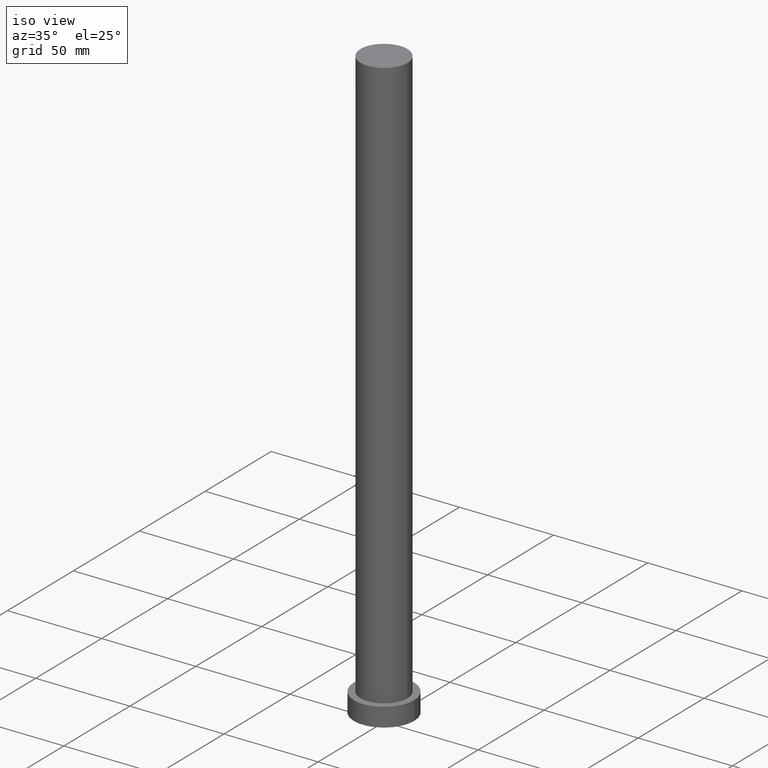
[diagram: clean part render]
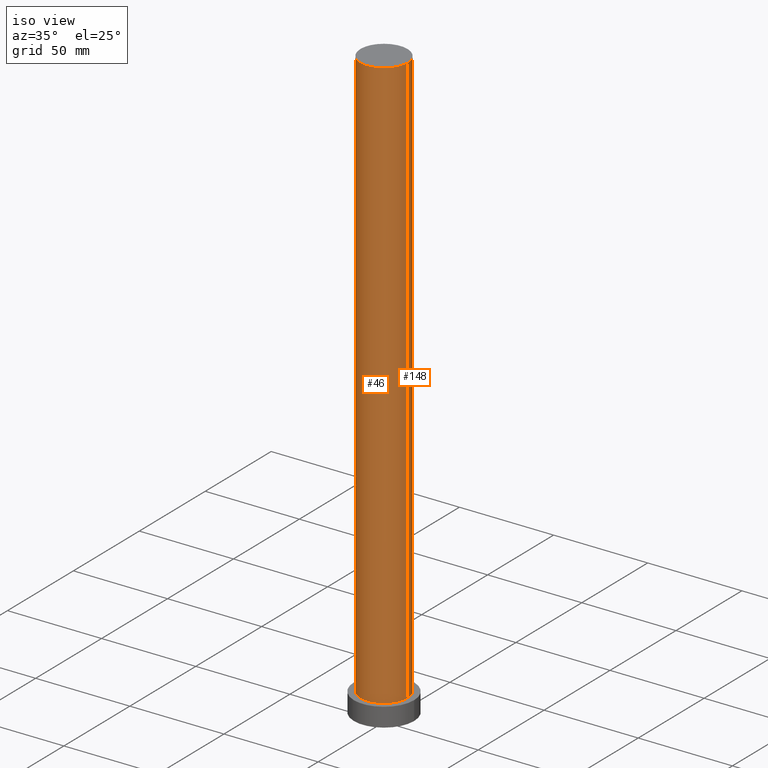
[diagram: same view with one multi-face feature highlighted, each face labeled with its STEP entity id]
A machine part, iso view. The highlighted faces form ONE feature: a constant-radius fillet chain: 2 tangent blend faces with common blend radius 12.5 mm. The faces share edges in the B-rep.
Their STEP definitions:
[1] entity #46 (Cylinder):
#2 = CIRCLE ( 'NONE', #165, 12.50000000000000000 ) ;
#6 = CARTESIAN_POINT ( 'NONE',  ( -12.50000000000000000, 0.000000000000000000, 10.00000000000000000 ) ) ;
#12 = LINE ( 'NONE', #186, #53 ) ;
#15 = DIRECTION ( 'NONE',  ( -0.000000000000000000, -0.000000000000000000, -1.000000000000000000 ) ) ;
#22 = VERTEX_POINT ( 'NONE', #207 ) ;
#27 = VERTEX_POINT ( 'NONE', #6 ) ;
#46 = ADVANCED_FACE ( 'NONE', ( #55 ), #189, .T. ) ;
#49 = VERTEX_POINT ( 'NONE', #241 ) ;
#53 = VECTOR ( 'NONE', #15, 1000.000000000000000 ) ;
#55 = FACE_OUTER_BOUND ( 'NONE', #254, .T. ) ;
#58 = EDGE_CURVE ( 'NONE', #22, #111, #142, .T. ) ;
#65 = CIRCLE ( 'NONE', #205, 12.50000000000000000 ) ;
#68 = EDGE_CURVE ( 'NONE', #27, #111, #2, .T. ) ;
#84 = DIRECTION ( 'NONE',  ( 0.000000000000000000, 0.000000000000000000, 1.000000000000000000 ) ) ;
#85 = AXIS2_PLACEMENT_3D ( 'NONE', #171, #246, #137 ) ;
#87 = ORIENTED_EDGE ( 'NONE', *, *, #103, .T. ) ;
#98 = CARTESIAN_POINT ( 'NONE',  ( 12.50000000000000000, 1.530808498934191521E-15, 10.00000000000000000 ) ) ;
#103 = EDGE_CURVE ( 'NONE', #49, #27, #12, .T. ) ;
#111 = VERTEX_POINT ( 'NONE', #98 ) ;
#113 = ORIENTED_EDGE ( 'NONE', *, *, #68, .T. ) ;
#118 = CARTESIAN_POINT ( 'NONE',  ( 12.50000000000000000, 1.530808498934191521E-15, 315.0000000000000000 ) ) ;
#121 = DIRECTION ( 'NONE',  ( -0.000000000000000000, -0.000000000000000000, -1.000000000000000000 ) ) ;
#128 = ORIENTED_EDGE ( 'NONE', *, *, #58, .F. ) ;
#137 = DIRECTION ( 'NONE',  ( -1.000000000000000000, 0.000000000000000000, 0.000000000000000000 ) ) ;
#142 = LINE ( 'NONE', #118, #227 ) ;
#164 = DIRECTION ( 'NONE',  ( 1.000000000000000000, 0.000000000000000000, 0.000000000000000000 ) ) ;
#165 = AXIS2_PLACEMENT_3D ( 'NONE', #192, #187, #223 ) ;
#171 = CARTESIAN_POINT ( 'NONE',  ( 0.000000000000000000, 0.000000000000000000, 315.0000000000000000 ) ) ;
#186 = CARTESIAN_POINT ( 'NONE',  ( -12.50000000000000000, 0.000000000000000000, 315.0000000000000000 ) ) ;
#187 = DIRECTION ( 'NONE',  ( 0.000000000000000000, 0.000000000000000000, 1.000000000000000000 ) ) ;
#189 = CYLINDRICAL_SURFACE ( 'NONE', #85, 12.50000000000000000 ) ;
#192 = CARTESIAN_POINT ( 'NONE',  ( 0.000000000000000000, 0.000000000000000000, 10.00000000000000000 ) ) ;
#205 = AXIS2_PLACEMENT_3D ( 'NONE', #234, #84, #164 ) ;
#207 = CARTESIAN_POINT ( 'NONE',  ( 12.50000000000000000, 1.530808498934191521E-15, 315.0000000000000000 ) ) ;
#218 = ORIENTED_EDGE ( 'NONE', *, *, #255, .F. ) ;
#223 = DIRECTION ( 'NONE',  ( 1.000000000000000000, 0.000000000000000000, 0.000000000000000000 ) ) ;
#227 = VECTOR ( 'NONE', #121, 1000.000000000000000 ) ;
#234 = CARTESIAN_POINT ( 'NONE',  ( 0.000000000000000000, 0.000000000000000000, 315.0000000000000000 ) ) ;
#241 = CARTESIAN_POINT ( 'NONE',  ( -12.50000000000000000, 0.000000000000000000, 315.0000000000000000 ) ) ;
#246 = DIRECTION ( 'NONE',  ( -0.000000000000000000, -0.000000000000000000, -1.000000000000000000 ) ) ;
#254 = EDGE_LOOP ( 'NONE', ( #128, #218, #87, #113 ) ) ;
#255 = EDGE_CURVE ( 'NONE', #49, #22, #65, .T. ) ;
[2] entity #148 (Cylinder):
#6 = CARTESIAN_POINT ( 'NONE',  ( -12.50000000000000000, 0.000000000000000000, 10.00000000000000000 ) ) ;
#12 = LINE ( 'NONE', #186, #53 ) ;
#15 = DIRECTION ( 'NONE',  ( -0.000000000000000000, -0.000000000000000000, -1.000000000000000000 ) ) ;
#22 = VERTEX_POINT ( 'NONE', #207 ) ;
#27 = VERTEX_POINT ( 'NONE', #6 ) ;
#38 = DIRECTION ( 'NONE',  ( -0.000000000000000000, -0.000000000000000000, -1.000000000000000000 ) ) ;
#39 = EDGE_CURVE ( 'NONE', #22, #49, #135, .T. ) ;
#40 = DIRECTION ( 'NONE',  ( 1.000000000000000000, 0.000000000000000000, 0.000000000000000000 ) ) ;
#44 = ORIENTED_EDGE ( 'NONE', *, *, #229, .T. ) ;
#49 = VERTEX_POINT ( 'NONE', #241 ) ;
#53 = VECTOR ( 'NONE', #15, 1000.000000000000000 ) ;
#56 = CYLINDRICAL_SURFACE ( 'NONE', #78, 12.50000000000000000 ) ;
#58 = EDGE_CURVE ( 'NONE', #22, #111, #142, .T. ) ;
#66 = EDGE_LOOP ( 'NONE', ( #179, #144, #44, #105 ) ) ;
#69 = FACE_OUTER_BOUND ( 'NONE', #66, .T. ) ;
#78 = AXIS2_PLACEMENT_3D ( 'NONE', #250, #38, #120 ) ;
#91 = CARTESIAN_POINT ( 'NONE',  ( 0.000000000000000000, 0.000000000000000000, 315.0000000000000000 ) ) ;
#98 = CARTESIAN_POINT ( 'NONE',  ( 12.50000000000000000, 1.530808498934191521E-15, 10.00000000000000000 ) ) ;
#101 = DIRECTION ( 'NONE',  ( 0.000000000000000000, 0.000000000000000000, 1.000000000000000000 ) ) ;
#102 = DIRECTION ( 'NONE',  ( 1.000000000000000000, 0.000000000000000000, 0.000000000000000000 ) ) ;
#103 = EDGE_CURVE ( 'NONE', #49, #27, #12, .T. ) ;
#105 = ORIENTED_EDGE ( 'NONE', *, *, #103, .F. ) ;
#111 = VERTEX_POINT ( 'NONE', #98 ) ;
#118 = CARTESIAN_POINT ( 'NONE',  ( 12.50000000000000000, 1.530808498934191521E-15, 315.0000000000000000 ) ) ;
#120 = DIRECTION ( 'NONE',  ( -1.000000000000000000, 0.000000000000000000, 0.000000000000000000 ) ) ;
#121 = DIRECTION ( 'NONE',  ( -0.000000000000000000, -0.000000000000000000, -1.000000000000000000 ) ) ;
#135 = CIRCLE ( 'NONE', #190, 12.50000000000000000 ) ;
#142 = LINE ( 'NONE', #118, #227 ) ;
#144 = ORIENTED_EDGE ( 'NONE', *, *, #58, .T. ) ;
#148 = ADVANCED_FACE ( 'NONE', ( #69 ), #56, .T. ) ;
#157 = AXIS2_PLACEMENT_3D ( 'NONE', #247, #194, #102 ) ;
#179 = ORIENTED_EDGE ( 'NONE', *, *, #39, .F. ) ;
#186 = CARTESIAN_POINT ( 'NONE',  ( -12.50000000000000000, 0.000000000000000000, 315.0000000000000000 ) ) ;
#190 = AXIS2_PLACEMENT_3D ( 'NONE', #91, #101, #40 ) ;
#194 = DIRECTION ( 'NONE',  ( 0.000000000000000000, 0.000000000000000000, 1.000000000000000000 ) ) ;
#207 = CARTESIAN_POINT ( 'NONE',  ( 12.50000000000000000, 1.530808498934191521E-15, 315.0000000000000000 ) ) ;
#227 = VECTOR ( 'NONE', #121, 1000.000000000000000 ) ;
#229 = EDGE_CURVE ( 'NONE', #111, #27, #231, .T. ) ;
#231 = CIRCLE ( 'NONE', #157, 12.50000000000000000 ) ;
#241 = CARTESIAN_POINT ( 'NONE',  ( -12.50000000000000000, 0.000000000000000000, 315.0000000000000000 ) ) ;
#247 = CARTESIAN_POINT ( 'NONE',  ( 0.000000000000000000, 0.000000000000000000, 10.00000000000000000 ) ) ;
#250 = CARTESIAN_POINT ( 'NONE',  ( 0.000000000000000000, 0.000000000000000000, 315.0000000000000000 ) ) ;